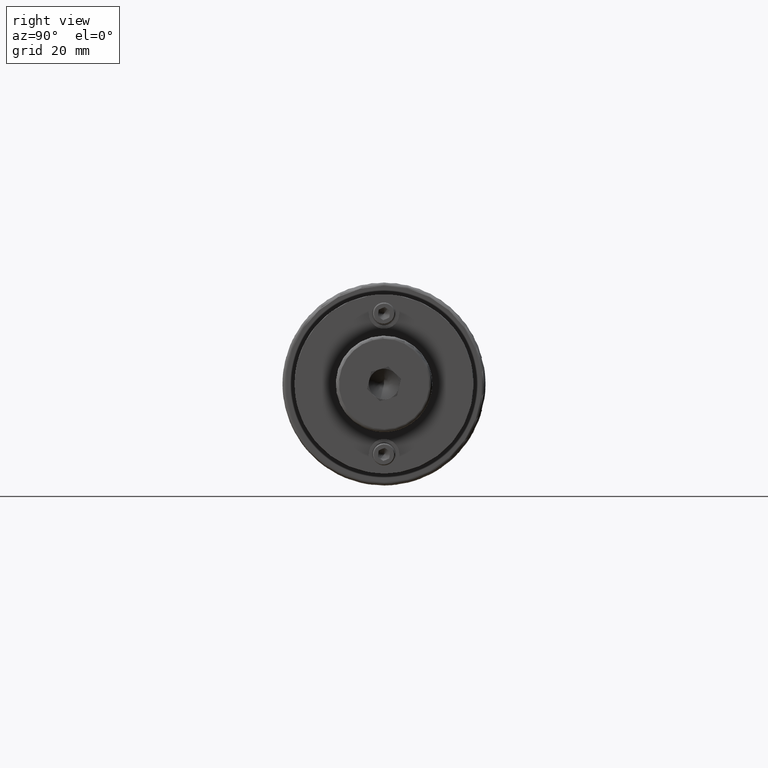
[diagram: clean part render]
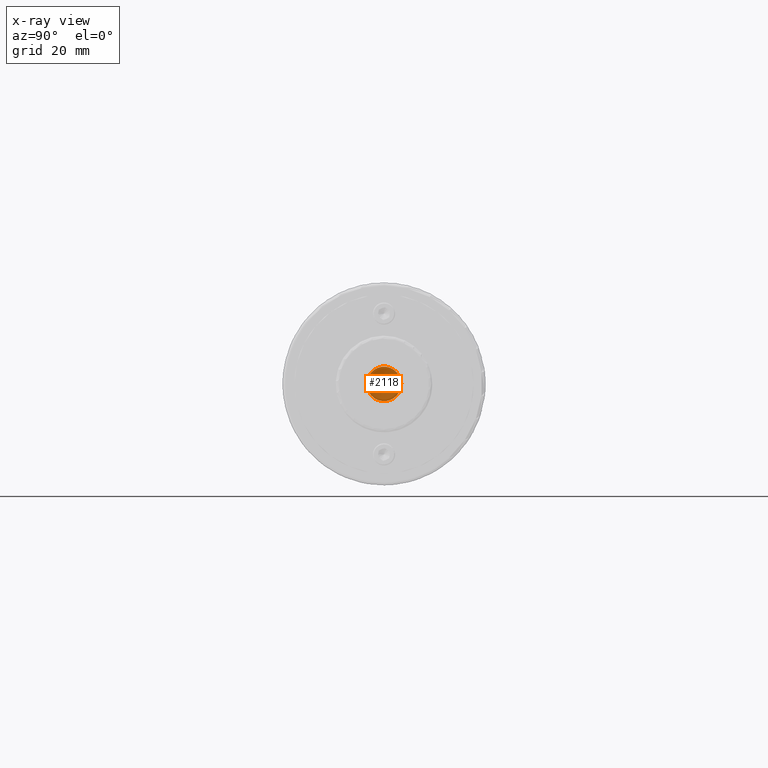
[diagram: x-ray — body ghosted, one internal face saturated and labeled with its STEP entity id]
A machine part, right view, then the same camera in x-ray: the body is ghosted and one INTERNAL B-rep face — a face not visible from any outside direction — is saturated and labeled: STEP entity #2118.
In plain terms, the highlighted planar face has unit normal (-1, -0, -0).
Its self-contained STEP definition (entity closure, byte-faithful):
#279=CIRCLE('',#2462,5.35000000000001);
#426=FACE_OUTER_BOUND('',#573,.T.);
#573=EDGE_LOOP('',(#1914));
#1036=VERTEX_POINT('',#3995);
#1329=EDGE_CURVE('',#1036,#1036,#279,.T.);
#1914=ORIENTED_EDGE('',*,*,#1329,.F.);
#1999=PLANE('',#2468);
#2118=ADVANCED_FACE('',(#426),#1999,.T.);
#2462=AXIS2_PLACEMENT_3D('',#3996,#3094,#3095);
#2468=AXIS2_PLACEMENT_3D('',#4008,#3108,#3109);
#3094=DIRECTION('center_axis',(-1.,0.,0.));
#3095=DIRECTION('ref_axis',(0.,-1.,0.));
#3108=DIRECTION('center_axis',(1.,0.,0.));
#3109=DIRECTION('ref_axis',(0.,0.,-1.));
#3995=CARTESIAN_POINT('',(43.,5.35000000000001,-6.55186037543835E-16));
#3996=CARTESIAN_POINT('Origin',(43.,0.,0.));
#4008=CARTESIAN_POINT('Origin',(43.,9.93041345824037E-15,0.));